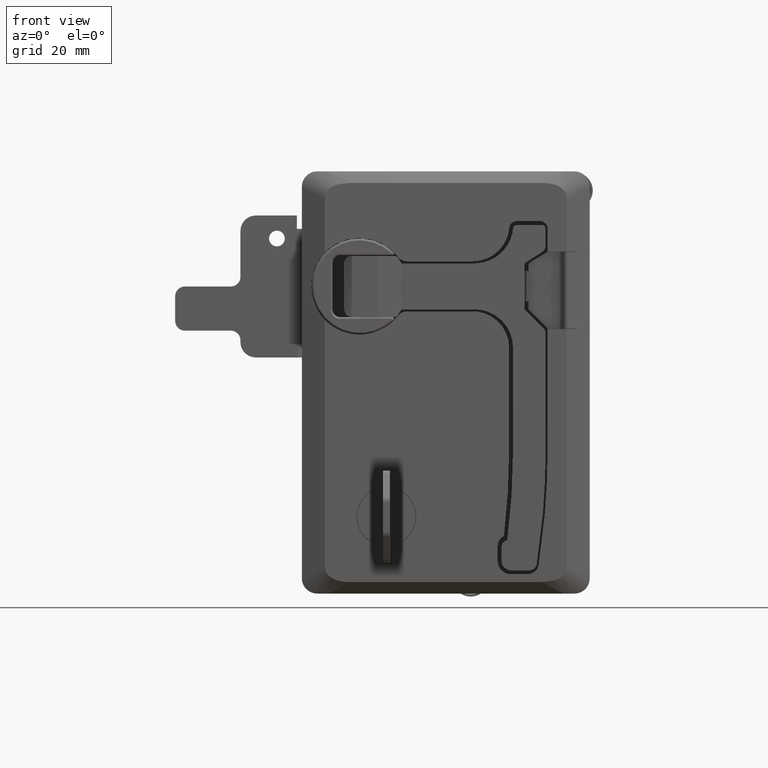
[diagram: clean part render]
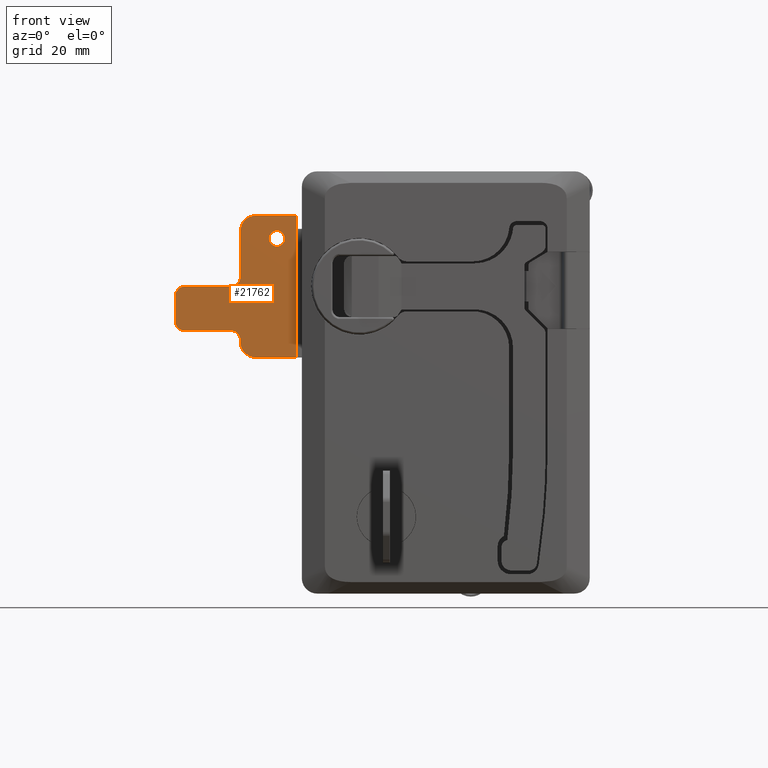
[diagram: same view with one face highlighted and labeled with its STEP entity id]
A machine part, front view. The second image highlights one B-rep face of the part: STEP entity #21762.
In plain terms, the highlighted face is a freeform B-spline surface patch.
Its self-contained STEP definition (entity closure, byte-faithful):
#19906=CARTESIAN_POINT('',(20.088873605326359,-22.500000000000000,13.987016829207970));
#19907=VERTEX_POINT('',#19906);
#19913=CARTESIAN_POINT('',(21.500000000000000,-22.500000000000000,14.550000000000001));
#19914=VERTEX_POINT('',#19913);
#19915=CARTESIAN_POINT('',(21.500000000000000,-22.500000000000000,14.550000000000001));
#19916=CARTESIAN_POINT('',(21.224339860082111,-22.500000000000011,14.550337636138639));
#19917=CARTESIAN_POINT('',(20.705841394381689,-22.499999999999989,14.443661336948530));
#19918=CARTESIAN_POINT('',(20.265173753978161,-22.500000000000011,14.154560841613881));
#19919=CARTESIAN_POINT('',(20.088873605326359,-22.500000000000000,13.987016829207970));
#19920=B_SPLINE_CURVE_WITH_KNOTS('',3,(#19915,#19916,#19917,#19918,#19919),.UNSPECIFIED.,.F.,.U.,(4,1,4),(0.000000058347338,0.826839151833361,1.556433638273578),.UNSPECIFIED.);
#19921=EDGE_CURVE('',#19914,#19907,#19920,.T.);
#19923=CARTESIAN_POINT('',(23.549999999997539,-22.500000000000000,12.500003173038520));
#19924=VERTEX_POINT('',#19923);
#19925=CARTESIAN_POINT('',(23.549999999997539,-22.500000000000000,12.500003173038520));
#19926=CARTESIAN_POINT('',(23.550096243701638,-22.500000000000028,12.718035858907200));
#19927=CARTESIAN_POINT('',(23.477139712656822,-22.499999999999950,13.170847900037220));
#19928=CARTESIAN_POINT('',(23.196372364488450,-22.500000000000099,13.696169061876709));
#19929=CARTESIAN_POINT('',(22.789571513134661,-22.499999999999869,14.123366171016469));
#19930=CARTESIAN_POINT('',(22.254584346425389,-22.500000000000089,14.453117399416611));
#19931=CARTESIAN_POINT('',(21.768372063846350,-22.500000000000028,14.550273353632869));
#19932=CARTESIAN_POINT('',(21.500000000000000,-22.500000000000000,14.550000000000001));
#19933=B_SPLINE_CURVE_WITH_KNOTS('',3,(#19925,#19926,#19927,#19928,#19929,#19930,#19931,#19932),.UNSPECIFIED.,.F.,.U.,(4,1,1,1,1,4),(0.000000215087961,0.654104521120570,1.358531258143607,1.761015617375512,2.415158688549666,3.220211487480281),.UNSPECIFIED.);
#19934=EDGE_CURVE('',#19924,#19914,#19933,.T.);
#19936=CARTESIAN_POINT('',(21.500000000000000,-22.500000000000000,10.449999999999999));
#19937=VERTEX_POINT('',#19936);
#19938=CARTESIAN_POINT('',(21.500000000000000,-22.500000000000000,10.449999999999999));
#19939=CARTESIAN_POINT('',(21.768391505706202,-22.500000000000021,10.449737424697471));
#19940=CARTESIAN_POINT('',(22.187460714748720,-22.500000000000000,10.533527753931990));
#19941=CARTESIAN_POINT('',(22.675226097440451,-22.500000000000000,10.802174243799699));
#19942=CARTESIAN_POINT('',(23.083784362156219,-22.499999999999972,11.154247967020890));
#19943=CARTESIAN_POINT('',(23.446421164914891,-22.500000000000021,11.711900268042760));
#19944=CARTESIAN_POINT('',(23.550290686143111,-22.500000000000011,12.231615410013390));
#19945=CARTESIAN_POINT('',(23.549999999997539,-22.500000000000000,12.500003173038520));
#19946=B_SPLINE_CURVE_WITH_KNOTS('',3,(#19938,#19939,#19940,#19941,#19942,#19943,#19944,#19945),.UNSPECIFIED.,.F.,.U.,(4,1,1,1,1,4),(0.000000210743662,0.805055499176777,1.257923322286635,1.660394051235645,2.415161373384703,3.220215064323452),.UNSPECIFIED.);
#19947=EDGE_CURVE('',#19937,#19924,#19946,.T.);
#19949=CARTESIAN_POINT('',(19.934710383450831,-22.500000000000000,11.176228258519100));
#19950=VERTEX_POINT('',#19949);
#19951=CARTESIAN_POINT('',(19.934710383450831,-22.500000000000000,11.176228258519100));
#19952=CARTESIAN_POINT('',(20.114191693462480,-22.500000000000011,10.963481476415920));
#19953=CARTESIAN_POINT('',(20.591442070834699,-22.499999999999961,10.589989570186219));
#19954=CARTESIAN_POINT('',(21.184495383587219,-22.500000000000028,10.449401284311900));
#19955=CARTESIAN_POINT('',(21.500000000000000,-22.500000000000000,10.449999999999999));
#19956=B_SPLINE_CURVE_WITH_KNOTS('',3,(#19951,#19952,#19953,#19954,#19955),.UNSPECIFIED.,.F.,.U.,(4,1,4),(0.000000058972694,0.834900062308723,1.781098277295949),.UNSPECIFIED.);
#19957=EDGE_CURVE('',#19950,#19937,#19956,.T.);
#19983=CARTESIAN_POINT('',(19.450000000002451,-22.500000000000000,12.499996826961461));
#19984=VERTEX_POINT('',#19983);
#19985=CARTESIAN_POINT('',(19.450000000002451,-22.500000000000000,12.499996826961461));
#19986=CARTESIAN_POINT('',(19.449940225537301,-22.500000000000000,12.305121580046279));
#19987=CARTESIAN_POINT('',(19.518873245794762,-22.499999999999979,11.825426201602420));
#19988=CARTESIAN_POINT('',(19.750460093351819,-22.500000000000028,11.393518614112240));
#19989=CARTESIAN_POINT('',(19.934710383450831,-22.500000000000000,11.176228258519100));
#19990=B_SPLINE_CURVE_WITH_KNOTS('',3,(#19985,#19986,#19987,#19988,#19989),.UNSPECIFIED.,.F.,.U.,(4,1,4),(0.000000051454400,0.584643917060167,1.439115171158228),.UNSPECIFIED.);
#19991=EDGE_CURVE('',#19984,#19950,#19990,.T.);
#19993=CARTESIAN_POINT('',(20.088873605326359,-22.500000000000000,13.987016829207970));
#19994=CARTESIAN_POINT('',(19.950530902041290,-22.499999999999972,13.855839439795350));
#19995=CARTESIAN_POINT('',(19.721816233383620,-22.500000000000039,13.568200086251309));
#19996=CARTESIAN_POINT('',(19.501121984069538,-22.499999999999979,13.054547580217950));
#19997=CARTESIAN_POINT('',(19.449939138765139,-22.500000000000028,12.690641093654859));
#19998=CARTESIAN_POINT('',(19.450000000002451,-22.500000000000000,12.499996826961461));
#19999=B_SPLINE_CURVE_WITH_KNOTS('',3,(#19993,#19994,#19995,#19996,#19997,#19998),.UNSPECIFIED.,.F.,.U.,(4,1,1,4),(0.000000060367020,0.571927478980516,1.091855038462801,1.663782457165679),.UNSPECIFIED.);
#20000=EDGE_CURVE('',#19907,#19984,#19999,.T.);
#20535=CARTESIAN_POINT('',(31.0,-22.500000000000000,2.500000000000000));
#20536=VERTEX_POINT('',#20535);
#20537=CARTESIAN_POINT('',(33.500000000000000,-22.500000000000000,0.0));
#20538=VERTEX_POINT('',#20537);
#20539=CARTESIAN_POINT('',(31.0,-22.500000000000000,2.500000000000000));
#20540=CARTESIAN_POINT('',(30.999525914317861,-22.500000000000011,2.152188113583688));
#20541=CARTESIAN_POINT('',(31.108517771201811,-22.500000000000000,1.641328296238922));
#20542=CARTESIAN_POINT('',(31.503528184770548,-22.499999999999989,0.943797384773221));
#20543=CARTESIAN_POINT('',(32.002504047852227,-22.500000000000021,0.444783756291107));
#20544=CARTESIAN_POINT('',(32.722860037227910,-22.499999999999972,0.082338029916344));
#20545=CARTESIAN_POINT('',(33.234096741190250,-22.500000000000011,-0.000122621023813));
#20546=CARTESIAN_POINT('',(33.500000000000000,-22.500000000000000,0.0));
#20547=B_SPLINE_CURVE_WITH_KNOTS('',3,(#20539,#20540,#20541,#20542,#20543,#20544,#20545,#20546),.UNSPECIFIED.,.F.,.U.,(4,1,1,1,1,4),(0.000000174689877,1.043136674838344,1.534021893882554,2.393066643530522,3.129399539316869,3.927089360845372),.UNSPECIFIED.);
#20548=EDGE_CURVE('',#20536,#20538,#20547,.T.);
#20583=CARTESIAN_POINT('',(45.512267411973497,-22.500000000000000,0.0));
#20584=VERTEX_POINT('',#20583);
#20585=CARTESIAN_POINT('',(45.512267411973497,-22.500000000000000,0.0));
#20586=CARTESIAN_POINT('',(33.500000000000000,-22.500000000000000,0.0));
#20587=QUASI_UNIFORM_CURVE('',1,(#20585,#20586),.UNSPECIFIED.,.F.,.U.);
#20588=EDGE_CURVE('',#20584,#20538,#20587,.T.);
#20620=CARTESIAN_POINT('',(48.000019999999999,-22.500000000000000,-2.499970000000000));
#20621=VERTEX_POINT('',#20620);
#20622=CARTESIAN_POINT('',(48.000019999999999,-22.500000000000000,-2.499970000000000));
#20623=CARTESIAN_POINT('',(48.000087428168300,-22.500000000000011,-2.275686411576557));
#20624=CARTESIAN_POINT('',(47.947507513439689,-22.499999999999979,-1.888344517183269));
#20625=CARTESIAN_POINT('',(47.705064644090037,-22.500000000000028,-1.257179983017673));
#20626=CARTESIAN_POINT('',(47.336336935874172,-22.500000000000000,-0.757957923041934));
#20627=CARTESIAN_POINT('',(46.852742713792722,-22.499999999999961,-0.378567081729610));
#20628=CARTESIAN_POINT('',(46.286459537933219,-22.500000000000249,-0.090982312662217));
#20629=CARTESIAN_POINT('',(45.818155093825823,-22.499999999999680,-0.001212621602538));
#20630=CARTESIAN_POINT('',(45.512267411973497,-22.500000000000000,0.0));
#20631=B_SPLINE_CURVE_WITH_KNOTS('',3,(#20622,#20623,#20624,#20625,#20626,#20627,#20628,#20629,#20630),.UNSPECIFIED.,.F.,.U.,(4,1,1,1,1,1,4),(0.000000172117768,0.672850923413489,1.162219994715192,2.018567429961712,2.507923779085278,2.997303541817787,3.914840980880257),.UNSPECIFIED.);
#20632=EDGE_CURVE('',#20621,#20584,#20631,.T.);
#20670=CARTESIAN_POINT('',(31.0,-22.500000000000000,14.500000000000000));
#20671=VERTEX_POINT('',#20670);
#20672=CARTESIAN_POINT('',(27.0,-22.500000000000000,18.500000000000000));
#20673=VERTEX_POINT('',#20672);
#20674=CARTESIAN_POINT('',(31.0,-22.500000000000000,14.500000000000000));
#20675=CARTESIAN_POINT('',(31.000035856256972,-22.500000000000000,14.778161721772030));
#20676=CARTESIAN_POINT('',(30.941719819621738,-22.500000000000000,15.334453212133409));
#20677=CARTESIAN_POINT('',(30.638052008434570,-22.499999999999950,16.273764027151820));
#20678=CARTESIAN_POINT('',(30.141038214910431,-22.500000000000050,17.037661375018310));
#20679=CARTESIAN_POINT('',(29.427971764736942,-22.500000000000039,17.716429602771768));
#20680=CARTESIAN_POINT('',(28.682968259609961,-22.499999999999780,18.175558867940129));
#20681=CARTESIAN_POINT('',(27.801758834583939,-22.500000000000259,18.448667161994731));
#20682=CARTESIAN_POINT('',(27.245433506880641,-22.499999999999812,18.500016506751130));
#20683=CARTESIAN_POINT('',(27.0,-22.500000000000000,18.500000000000000));
#20684=B_SPLINE_CURVE_WITH_KNOTS('',3,(#20674,#20675,#20676,#20677,#20678,#20679,#20680,#20681,#20682,#20683),.UNSPECIFIED.,.F.,.U.,(4,1,1,1,1,1,1,4),(0.000000159520622,0.834485036300798,1.668982181578437,2.945287216618809,3.534280013149335,4.614242343455795,5.546915103190470,6.283224731516529),.UNSPECIFIED.);
#20685=EDGE_CURVE('',#20671,#20673,#20684,.T.);
#20722=CARTESIAN_POINT('',(31.0,-22.500000000000000,2.500000000000000));
#20723=CARTESIAN_POINT('',(31.0,-22.500000000000000,14.500000000000000));
#20724=QUASI_UNIFORM_CURVE('',1,(#20722,#20723),.UNSPECIFIED.,.F.,.U.);
#20725=EDGE_CURVE('',#20536,#20671,#20724,.T.);
#20751=CARTESIAN_POINT('',(33.500000000000000,-22.500000000000000,-11.499969999999999));
#20752=VERTEX_POINT('',#20751);
#20753=CARTESIAN_POINT('',(31.0,-22.500000000000000,-13.999969999999999));
#20754=VERTEX_POINT('',#20753);
#20755=CARTESIAN_POINT('',(33.500000000000000,-22.500000000000000,-11.499969999999999));
#20756=CARTESIAN_POINT('',(33.193152981928407,-22.500000000000021,-11.499702199472649));
#20757=CARTESIAN_POINT('',(32.722964363657198,-22.499999999999979,-11.587714315748769));
#20758=CARTESIAN_POINT('',(32.080417401461510,-22.500000000000050,-11.911139410897210));
#20759=CARTESIAN_POINT('',(31.642053347300049,-22.499999999999869,-12.289215085962530));
#20760=CARTESIAN_POINT('',(31.310778456507968,-22.500000000000188,-12.759776416157541));
#20761=CARTESIAN_POINT('',(31.069209997095388,-22.499999999999780,-13.304646703983140));
#20762=CARTESIAN_POINT('',(30.999842262765569,-22.500000000000181,-13.734057047472850));
#20763=CARTESIAN_POINT('',(31.0,-22.500000000000000,-13.999969999999999));
#20764=B_SPLINE_CURVE_WITH_KNOTS('',3,(#20755,#20756,#20757,#20758,#20759,#20760,#20761,#20762,#20763),.UNSPECIFIED.,.F.,.U.,(4,1,1,1,1,1,4),(0.000000174684105,0.920408363298682,1.411319006959294,2.147586209133551,2.638498723851759,3.129399539315720,3.927089360845432),.UNSPECIFIED.);
#20765=EDGE_CURVE('',#20752,#20754,#20764,.T.);
#20800=CARTESIAN_POINT('',(31.0,-22.500000000000000,-14.499969999999999));
#20801=VERTEX_POINT('',#20800);
#20802=CARTESIAN_POINT('',(31.0,-22.500000000000000,-14.499969999999999));
#20803=CARTESIAN_POINT('',(31.0,-22.500000000000000,-13.999969999999999));
#20804=QUASI_UNIFORM_CURVE('',1,(#20802,#20803),.UNSPECIFIED.,.F.,.U.);
#20805=EDGE_CURVE('',#20801,#20754,#20804,.T.);
#20837=CARTESIAN_POINT('',(27.0,-22.500000000000000,-18.499970000000001));
#20838=VERTEX_POINT('',#20837);
#20839=CARTESIAN_POINT('',(27.0,-22.500000000000000,-18.499970000000001));
#20840=CARTESIAN_POINT('',(27.458203526221659,-22.500000000000089,-18.500330316433200));
#20841=CARTESIAN_POINT('',(28.161533168804009,-22.499999999999901,-18.377668528769600));
#20842=CARTESIAN_POINT('',(29.174622770379489,-22.500000000000050,-17.906194027322918));
#20843=CARTESIAN_POINT('',(29.881986708054079,-22.499999999999950,-17.332937294116618));
#20844=CARTESIAN_POINT('',(30.474076157877530,-22.500000000000060,-16.544531355975629));
#20845=CARTESIAN_POINT('',(30.886050241420410,-22.499999999999769,-15.645255376452020));
#20846=CARTESIAN_POINT('',(31.000197424785839,-22.500000000000309,-14.909044962561570));
#20847=CARTESIAN_POINT('',(31.0,-22.500000000000000,-14.499969999999999));
#20848=B_SPLINE_CURVE_WITH_KNOTS('',3,(#20839,#20840,#20841,#20842,#20843,#20844,#20845,#20846,#20847),.UNSPECIFIED.,.F.,.U.,(4,1,1,1,1,1,4),(0.000000159528403,1.374452098377176,2.110784357251906,3.337938070304201,4.074266579674097,5.056042614365828,6.283224731516537),.UNSPECIFIED.);
#20849=EDGE_CURVE('',#20838,#20801,#20848,.T.);
#20889=CARTESIAN_POINT('',(45.500019999999999,-22.500000000000000,-11.499969999999999));
#20890=VERTEX_POINT('',#20889);
#20891=CARTESIAN_POINT('',(48.000019999999999,-22.500000000000000,-8.999969999999999));
#20892=VERTEX_POINT('',#20891);
#20893=CARTESIAN_POINT('',(45.500019999999999,-22.500000000000000,-11.499969999999999));
#20894=CARTESIAN_POINT('',(45.806870793177247,-22.499999999999989,-11.500261735501040));
#20895=CARTESIAN_POINT('',(46.236174297870633,-22.500000000000028,-11.419878735515621));
#20896=CARTESIAN_POINT('',(46.773825197279777,-22.499999999999989,-11.165519125128490));
#20897=CARTESIAN_POINT('',(47.177086573892439,-22.500000000000000,-10.881519643295860));
#20898=CARTESIAN_POINT('',(47.620141708103709,-22.500000000000121,-10.393010587955869));
#20899=CARTESIAN_POINT('',(47.930647961763498,-22.499999999999609,-9.736298022842718));
#20900=CARTESIAN_POINT('',(48.000063209812190,-22.500000000000579,-9.224944406020301));
#20901=CARTESIAN_POINT('',(48.000019999999999,-22.500000000000000,-8.999969999999999));
#20902=B_SPLINE_CURVE_WITH_KNOTS('',3,(#20893,#20894,#20895,#20896,#20897,#20898,#20899,#20900,#20901),.UNSPECIFIED.,.F.,.U.,(4,1,1,1,1,1,4),(0.000000174697545,0.920408363309388,1.288591158799943,1.779503127322172,2.393066643533315,3.252135403485825,3.927089360845274),.UNSPECIFIED.);
#20903=EDGE_CURVE('',#20890,#20892,#20902,.T.);
#20939=CARTESIAN_POINT('',(33.500000000000000,-22.500000000000000,-11.499969999999999));
#20940=CARTESIAN_POINT('',(45.500019999999999,-22.500000000000000,-11.499969999999999));
#20941=QUASI_UNIFORM_CURVE('',1,(#20939,#20940),.UNSPECIFIED.,.F.,.U.);
#20942=EDGE_CURVE('',#20752,#20890,#20941,.T.);
#20959=CARTESIAN_POINT('',(16.300000000000001,-22.500000000000000,15.0));
#20960=VERTEX_POINT('',#20959);
#21025=CARTESIAN_POINT('',(16.300000000000001,-22.500000000000000,18.500000000000000));
#21026=VERTEX_POINT('',#21025);
#21032=CARTESIAN_POINT('',(16.300000000000001,-22.500000000000000,18.500000000000000));
#21033=CARTESIAN_POINT('',(16.300000000000001,-22.500000000000000,15.0));
#21034=QUASI_UNIFORM_CURVE('',1,(#21032,#21033),.UNSPECIFIED.,.F.,.U.);
#21035=EDGE_CURVE('',#21026,#20960,#21034,.T.);
#21374=CARTESIAN_POINT('',(16.300000000000001,-22.500000000000000,-18.499970000000001));
#21375=VERTEX_POINT('',#21374);
#21376=CARTESIAN_POINT('',(16.300000000000001,-22.500000000000000,-18.499970000000001));
#21377=CARTESIAN_POINT('',(16.300000000000001,-22.500000000000000,15.0));
#21378=QUASI_UNIFORM_CURVE('',1,(#21376,#21377),.UNSPECIFIED.,.F.,.U.);
#21379=EDGE_CURVE('',#21375,#20960,#21378,.T.);
#21642=CARTESIAN_POINT('',(16.300000000000001,-22.500000000000000,-18.499970000000001));
#21643=CARTESIAN_POINT('',(27.0,-22.500000000000000,-18.499970000000001));
#21644=QUASI_UNIFORM_CURVE('',1,(#21642,#21643),.UNSPECIFIED.,.F.,.U.);
#21645=EDGE_CURVE('',#21375,#20838,#21644,.T.);
#21666=CARTESIAN_POINT('',(48.000019999999999,-22.500000000000000,-8.999969999999999));
#21667=CARTESIAN_POINT('',(48.000019999999999,-22.500000000000000,-2.499970000000000));
#21668=QUASI_UNIFORM_CURVE('',1,(#21666,#21667),.UNSPECIFIED.,.F.,.U.);
#21669=EDGE_CURVE('',#20892,#20621,#21668,.T.);
#21692=CARTESIAN_POINT('',(16.300000000000001,-22.500000000000000,18.500000000000000));
#21693=CARTESIAN_POINT('',(27.0,-22.500000000000000,18.500000000000000));
#21694=QUASI_UNIFORM_CURVE('',1,(#21692,#21693),.UNSPECIFIED.,.F.,.U.);
#21695=EDGE_CURVE('',#21026,#20673,#21694,.T.);
#21732=CARTESIAN_POINT('',(14.716583282964210,-22.500000000000000,20.348148297597000));
#21733=CARTESIAN_POINT('',(14.716583282964210,-22.500000000000000,-20.348116643569451));
#21734=CARTESIAN_POINT('',(49.583434449673682,-22.500000000000000,20.348148297597000));
#21735=CARTESIAN_POINT('',(49.583434449673682,-22.500000000000000,-20.348116643569451));
#21736=B_SPLINE_SURFACE_WITH_KNOTS('',1,1,((#21732,#21734),(#21733,#21735)),.UNSPECIFIED.,.F.,.F.,.U.,(2,2),(2,2),(0.0,40.696264941166447),(0.0,34.866851166709473),.UNSPECIFIED.);
#21737=ORIENTED_EDGE('',*,*,#21695,.T.);
#21738=ORIENTED_EDGE('',*,*,#20685,.F.);
#21739=ORIENTED_EDGE('',*,*,#20725,.F.);
#21740=ORIENTED_EDGE('',*,*,#20548,.T.);
#21741=ORIENTED_EDGE('',*,*,#20588,.F.);
#21742=ORIENTED_EDGE('',*,*,#20632,.F.);
#21743=ORIENTED_EDGE('',*,*,#21669,.F.);
#21744=ORIENTED_EDGE('',*,*,#20903,.F.);
#21745=ORIENTED_EDGE('',*,*,#20942,.F.);
#21746=ORIENTED_EDGE('',*,*,#20765,.T.);
#21747=ORIENTED_EDGE('',*,*,#20805,.F.);
#21748=ORIENTED_EDGE('',*,*,#20849,.F.);
#21749=ORIENTED_EDGE('',*,*,#21645,.F.);
#21750=ORIENTED_EDGE('',*,*,#21379,.T.);
#21751=ORIENTED_EDGE('',*,*,#21035,.F.);
#21752=EDGE_LOOP('',(#21737,#21738,#21739,#21740,#21741,#21742,#21743,#21744,#21745,#21746,#21747,#21748,#21749,#21750,#21751));
#21753=FACE_OUTER_BOUND('',#21752,.T.);
#21754=ORIENTED_EDGE('',*,*,#19947,.T.);
#21755=ORIENTED_EDGE('',*,*,#19934,.T.);
#21756=ORIENTED_EDGE('',*,*,#19921,.T.);
#21757=ORIENTED_EDGE('',*,*,#20000,.T.);
#21758=ORIENTED_EDGE('',*,*,#19991,.T.);
#21759=ORIENTED_EDGE('',*,*,#19957,.T.);
#21760=EDGE_LOOP('',(#21754,#21755,#21756,#21757,#21758,#21759));
#21761=FACE_BOUND('',#21760,.T.);
#21762=ADVANCED_FACE('',(#21753,#21761),#21736,.F.);